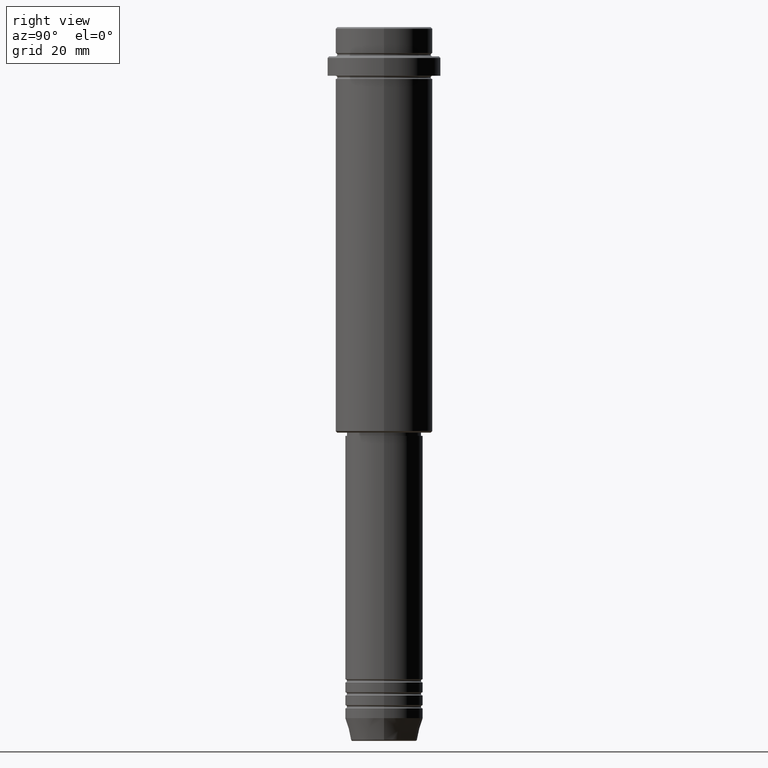
[diagram: clean part render]
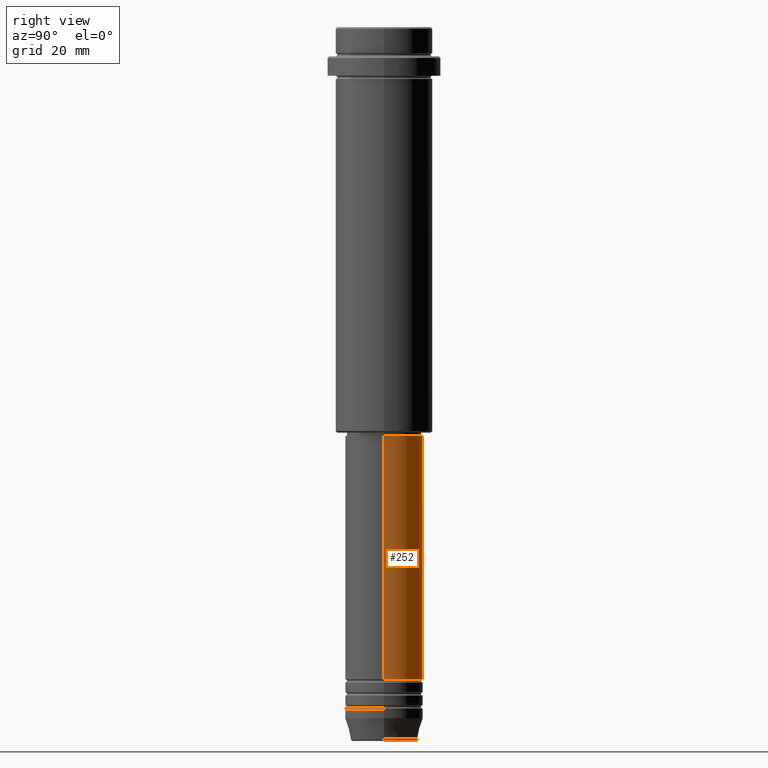
[diagram: same view with one face highlighted and labeled with its STEP entity id]
A machine part, right view. The second image highlights one B-rep face of the part: STEP entity #252.
In plain terms, the highlighted cylindrical surface (partial cylindrical patch) has radius 12 mm, axis along (-0, -0, 1).
Its self-contained STEP definition (entity closure, byte-faithful):
#10 = LINE ( 'NONE', #331, #160 ) ;
#21 = CYLINDRICAL_SURFACE ( 'NONE', #557, 12.00000000000000000 ) ;
#97 = EDGE_LOOP ( 'NONE', ( #520, #292, #784, #1019 ) ) ;
#160 = VECTOR ( 'NONE', #538, 1000.000000000000000 ) ;
#168 = DIRECTION ( 'NONE',  ( 1.000000000000000000, 0.000000000000000000, 0.000000000000000000 ) ) ;
#179 = DIRECTION ( 'NONE',  ( -0.000000000000000000, -0.000000000000000000, 1.000000000000000000 ) ) ;
#229 = FACE_OUTER_BOUND ( 'NONE', #97, .T. ) ;
#245 = EDGE_CURVE ( 'NONE', #1382, #1153, #10, .T. ) ;
#246 = CARTESIAN_POINT ( 'NONE',  ( -11.99999999999999822, 1.469576158976823750E-15, -126.0000000000000000 ) ) ;
#252 = ADVANCED_FACE ( 'NONE', ( #229 ), #21, .T. ) ;
#261 = CARTESIAN_POINT ( 'NONE',  ( 0.000000000000000000, 0.000000000000000000, -126.0000000000000000 ) ) ;
#292 = ORIENTED_EDGE ( 'NONE', *, *, #245, .T. ) ;
#331 = CARTESIAN_POINT ( 'NONE',  ( -12.00000000000000000, 1.469576158976823947E-15, 0.000000000000000000 ) ) ;
#336 = AXIS2_PLACEMENT_3D ( 'NONE', #261, #1224, #685 ) ;
#352 = EDGE_CURVE ( 'NONE', #898, #1382, #905, .T. ) ;
#469 = DIRECTION ( 'NONE',  ( 1.000000000000000000, 0.000000000000000000, 0.000000000000000000 ) ) ;
#503 = VERTEX_POINT ( 'NONE', #1003 ) ;
#520 = ORIENTED_EDGE ( 'NONE', *, *, #352, .T. ) ;
#526 = EDGE_CURVE ( 'NONE', #898, #503, #1106, .T. ) ;
#538 = DIRECTION ( 'NONE',  ( -0.000000000000000000, -0.000000000000000000, 1.000000000000000000 ) ) ;
#557 = AXIS2_PLACEMENT_3D ( 'NONE', #1104, #787, #469 ) ;
#598 = EDGE_CURVE ( 'NONE', #503, #1153, #631, .T. ) ;
#631 = CIRCLE ( 'NONE', #336, 11.99999999999999822 ) ;
#670 = CARTESIAN_POINT ( 'NONE',  ( -12.00000000000000000, 1.469576158976823947E-15, -200.9999999999999147 ) ) ;
#685 = DIRECTION ( 'NONE',  ( 1.000000000000000000, 0.000000000000000000, 0.000000000000000000 ) ) ;
#700 = AXIS2_PLACEMENT_3D ( 'NONE', #1132, #179, #168 ) ;
#784 = ORIENTED_EDGE ( 'NONE', *, *, #598, .F. ) ;
#787 = DIRECTION ( 'NONE',  ( -0.000000000000000000, -0.000000000000000000, 1.000000000000000000 ) ) ;
#856 = VECTOR ( 'NONE', #1210, 1000.000000000000000 ) ;
#879 = CARTESIAN_POINT ( 'NONE',  ( 12.00000000000000000, 0.000000000000000000, 0.000000000000000000 ) ) ;
#898 = VERTEX_POINT ( 'NONE', #1124 ) ;
#905 = CIRCLE ( 'NONE', #700, 12.00000000000000000 ) ;
#1003 = CARTESIAN_POINT ( 'NONE',  ( 11.99999999999999822, 0.000000000000000000, -126.0000000000000000 ) ) ;
#1019 = ORIENTED_EDGE ( 'NONE', *, *, #526, .F. ) ;
#1104 = CARTESIAN_POINT ( 'NONE',  ( 0.000000000000000000, 0.000000000000000000, 0.000000000000000000 ) ) ;
#1106 = LINE ( 'NONE', #879, #856 ) ;
#1124 = CARTESIAN_POINT ( 'NONE',  ( 12.00000000000000000, 0.000000000000000000, -200.9999999999999147 ) ) ;
#1132 = CARTESIAN_POINT ( 'NONE',  ( 0.000000000000000000, 0.000000000000000000, -200.9999999999999147 ) ) ;
#1153 = VERTEX_POINT ( 'NONE', #246 ) ;
#1210 = DIRECTION ( 'NONE',  ( -0.000000000000000000, -0.000000000000000000, 1.000000000000000000 ) ) ;
#1224 = DIRECTION ( 'NONE',  ( -0.000000000000000000, -0.000000000000000000, 1.000000000000000000 ) ) ;
#1382 = VERTEX_POINT ( 'NONE', #670 ) ;